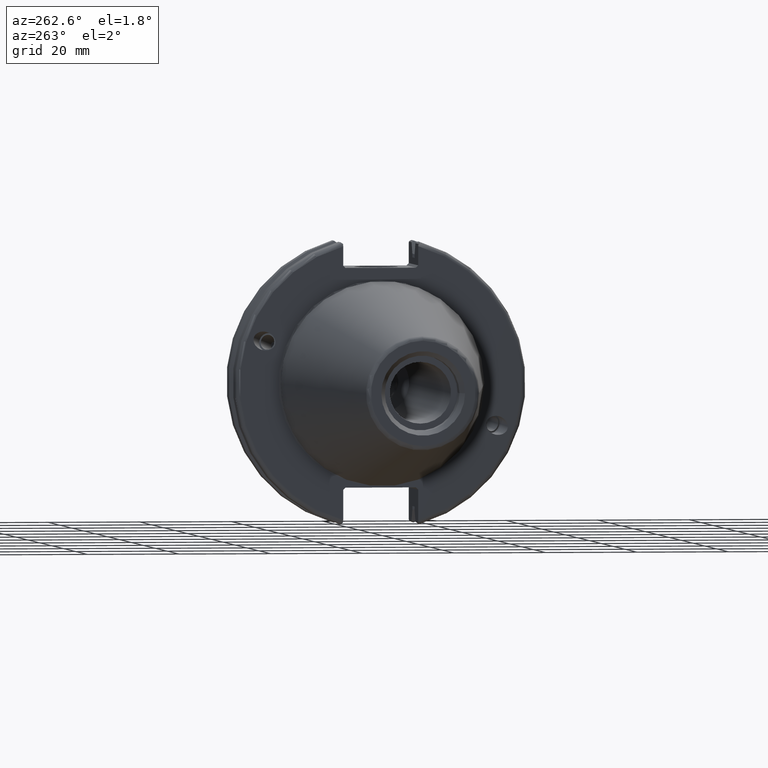
[diagram: clean part render]
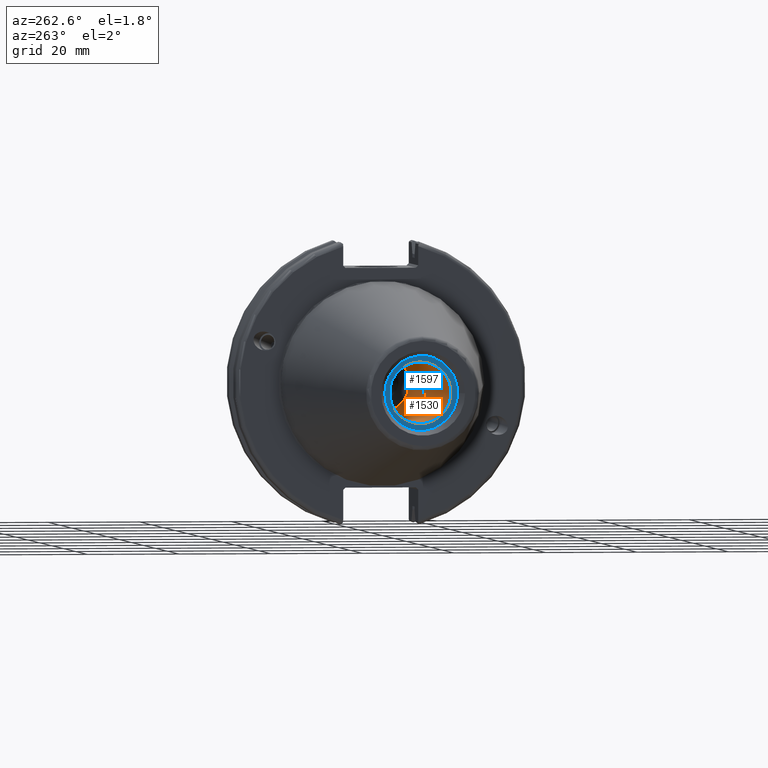
[diagram: same view with the hole feature highlighted: cylindrical wall and planar end face, labeled with their STEP entity ids]
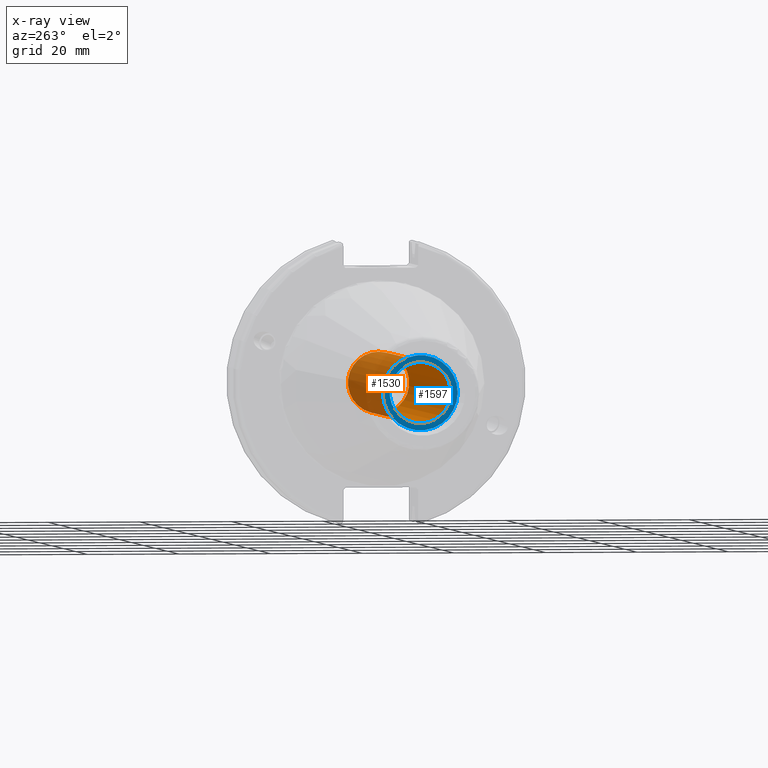
[diagram: x-ray of the same camera — body ghosted, the hole faces saturated]
A machine part, auxiliary view. The highlighted faces form one hole feature of diameter 13.3858 mm: the cylindrical wall (entity #1530, orange) and its adjacent planar end face (entity #1597, blue) — they share a circular edge in the B-rep.
The next image is the same camera in x-ray (body ghosted, the hole faces saturated) — the bore reads through the body.
Wall:
#115=LINE('',#2521,#209);
#209=VECTOR('',#1910,6.6929);
#289=CYLINDRICAL_SURFACE('',#1665,6.6929);
#378=FACE_OUTER_BOUND('',#471,.T.);
#471=EDGE_LOOP('',(#1113,#1114,#1115,#1116));
#578=CIRCLE('',#1664,6.6929);
#579=CIRCLE('',#1666,6.6929);
#669=VERTEX_POINT('',#2515);
#670=VERTEX_POINT('',#2519);
#838=EDGE_CURVE('',#669,#669,#578,.T.);
#840=EDGE_CURVE('',#670,#670,#579,.T.);
#841=EDGE_CURVE('',#670,#669,#115,.T.);
#1113=ORIENTED_EDGE('',*,*,#840,.F.);
#1114=ORIENTED_EDGE('',*,*,#841,.T.);
#1115=ORIENTED_EDGE('',*,*,#838,.F.);
#1116=ORIENTED_EDGE('',*,*,#841,.F.);
#1530=ADVANCED_FACE('',(#378),#289,.F.);
#1664=AXIS2_PLACEMENT_3D('',#2516,#1903,#1904);
#1665=AXIS2_PLACEMENT_3D('',#2518,#1906,#1907);
#1666=AXIS2_PLACEMENT_3D('',#2520,#1908,#1909);
#1903=DIRECTION('center_axis',(-1.,0.,0.));
#1904=DIRECTION('ref_axis',(0.,0.,1.));
#1906=DIRECTION('center_axis',(-1.,0.,0.));
#1907=DIRECTION('ref_axis',(0.,0.,1.));
#1908=DIRECTION('center_axis',(1.,0.,0.));
#1909=DIRECTION('ref_axis',(0.,0.,1.));
#1910=DIRECTION('',(1.,0.,0.));
#2515=CARTESIAN_POINT('',(6.74999999999999,-8.19643856201332E-16,-6.6929));
#2516=CARTESIAN_POINT('Origin',(6.74999999999999,0.,0.));
#2518=CARTESIAN_POINT('Origin',(-30.75,0.,0.));
#2519=CARTESIAN_POINT('',(-63.45,8.19643856201332E-16,-6.6929));
#2520=CARTESIAN_POINT('Origin',(-63.45,0.,0.));
#2521=CARTESIAN_POINT('',(-30.75,-8.19643856201332E-16,-6.6929));
End face:
#328=FACE_BOUND('',#548,.T.);
#362=PLANE('',#1799);
#445=FACE_OUTER_BOUND('',#547,.T.);
#547=EDGE_LOOP('',(#1480));
#548=EDGE_LOOP('',(#1481));
#579=CIRCLE('',#1666,6.6929);
#628=CIRCLE('',#1800,8.14999999999999);
#670=VERTEX_POINT('',#2519);
#787=VERTEX_POINT('',#3121);
#840=EDGE_CURVE('',#670,#670,#579,.T.);
#1022=EDGE_CURVE('',#787,#787,#628,.T.);
#1480=ORIENTED_EDGE('',*,*,#1022,.F.);
#1481=ORIENTED_EDGE('',*,*,#840,.T.);
#1597=ADVANCED_FACE('',(#445,#328),#362,.T.);
#1666=AXIS2_PLACEMENT_3D('',#2520,#1908,#1909);
#1799=AXIS2_PLACEMENT_3D('',#3120,#2247,#2248);
#1800=AXIS2_PLACEMENT_3D('',#3122,#2249,#2250);
#1908=DIRECTION('center_axis',(1.,0.,0.));
#1909=DIRECTION('ref_axis',(0.,0.,1.));
#2247=DIRECTION('center_axis',(-1.,0.,0.));
#2248=DIRECTION('ref_axis',(0.,0.,1.));
#2249=DIRECTION('center_axis',(1.,0.,0.));
#2250=DIRECTION('ref_axis',(0.,0.,-1.));
#2519=CARTESIAN_POINT('',(-63.45,8.19643856201332E-16,-6.6929));
#2520=CARTESIAN_POINT('Origin',(-63.45,0.,0.));
#3120=CARTESIAN_POINT('Origin',(-63.45,8.14999999999999,0.));
#3121=CARTESIAN_POINT('',(-63.45,-8.14999999999999,-9.98087141305092E-16));
#3122=CARTESIAN_POINT('Origin',(-63.45,0.,0.));